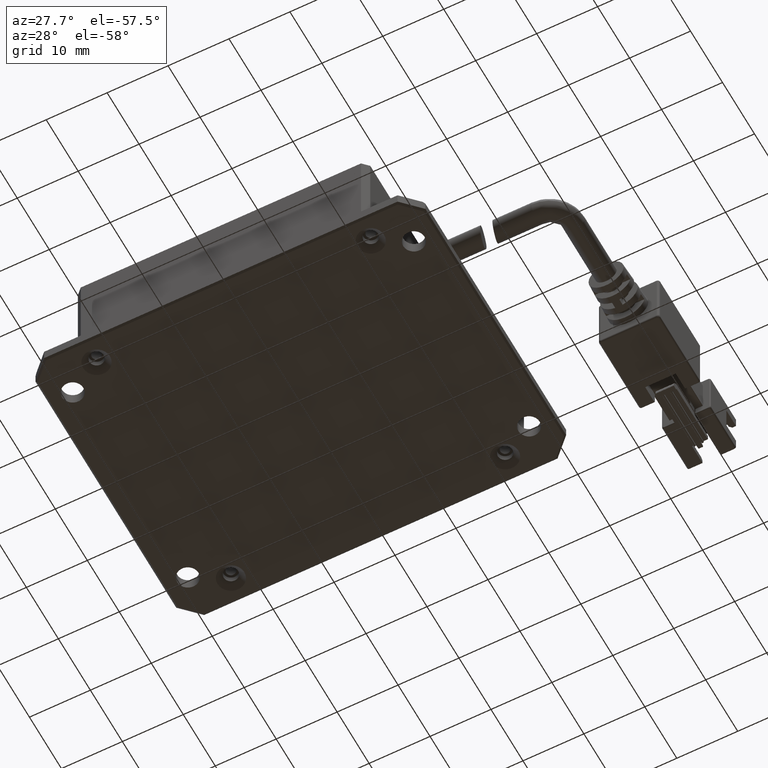
[diagram: clean part render]
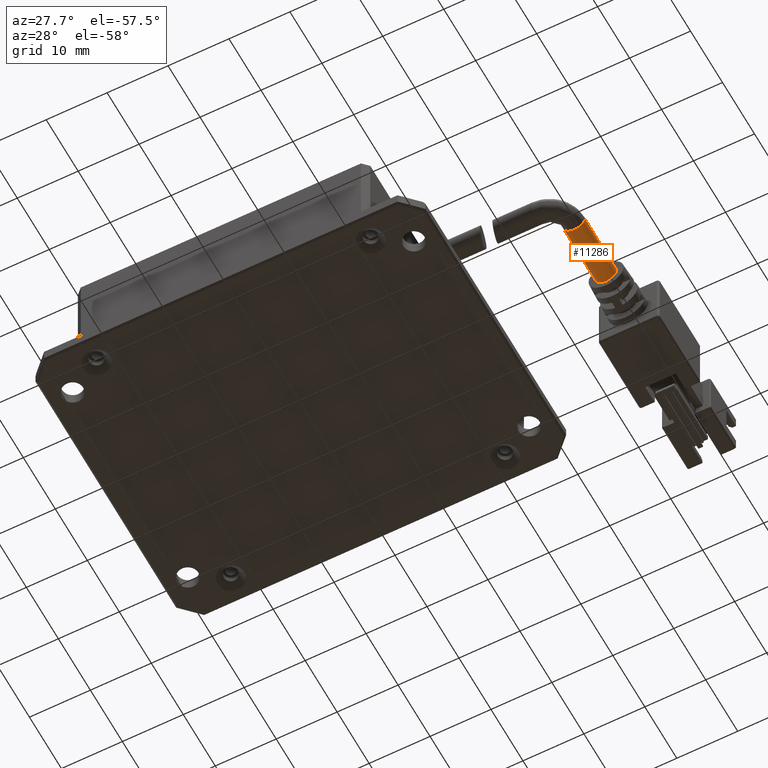
[diagram: same view with one face highlighted and labeled with its STEP entity id]
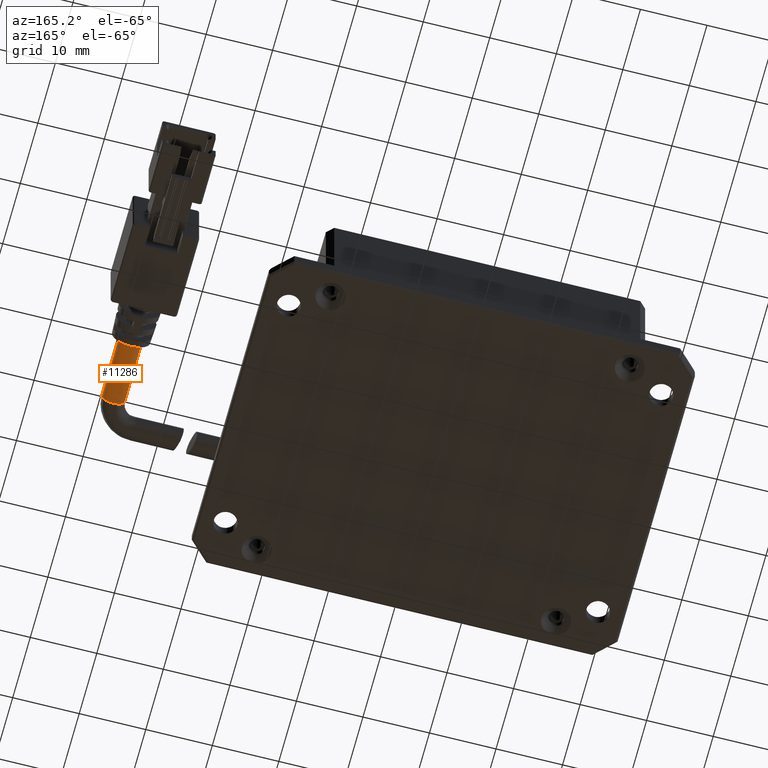
[diagram: same view with one face highlighted and labeled with its STEP entity id]
A machine part, auxiliary view. The second image highlights one B-rep face of the part: STEP entity #11286.
A second angle (auxiliary view) of the same face is appended — the face is thin or edge-on in the first view.
In plain terms, the highlighted cylindrical surface (edge-blend (fillet) strip) has radius 1.75 mm, axis along (-0, 1, -0).
Its self-contained STEP definition (entity closure, byte-faithful):
#380 = CARTESIAN_POINT ( 'NONE',  ( 47.09316533027874400, -3.709049255440967800, 4.999999999983692200 ) ) ;
#1060 = EDGE_CURVE ( 'NONE', #1186, #10900, #17662, .T. ) ;
#1186 = VERTEX_POINT ( 'NONE', #9278 ) ;
#1279 = DIRECTION ( 'NONE',  ( 1.000000000000000000, 0.0000000000000000000, 0.0000000000000000000 ) ) ;
#2511 = LINE ( 'NONE', #10498, #18842 ) ;
#3078 = CARTESIAN_POINT ( 'NONE',  ( 45.34316533027873700, -3.709049255440967800, 4.999999999983692200 ) ) ;
#3481 = CARTESIAN_POINT ( 'NONE',  ( 47.09316533027874400, -0.7090492554409685300, 4.999999999983692200 ) ) ;
#3563 = DIRECTION ( 'NONE',  ( -3.081487911019577400E-033, 1.000000000000000000, -2.672764710092188000E-049 ) ) ;
#4396 = EDGE_LOOP ( 'NONE', ( #4684, #8941, #15535, #16000 ) ) ;
#4540 = AXIS2_PLACEMENT_3D ( 'NONE', #20224, #10797, #1279 ) ;
#4684 = ORIENTED_EDGE ( 'NONE', *, *, #1060, .T. ) ;
#4831 = CARTESIAN_POINT ( 'NONE',  ( 48.84316533027874400, 6.290950744559033600, 4.999999999983692200 ) ) ;
#5043 = DIRECTION ( 'NONE',  ( -3.081487911019577400E-033, 1.000000000000000000, -2.672764710092188000E-049 ) ) ;
#5214 = CARTESIAN_POINT ( 'NONE',  ( 48.84316533027874400, -0.7090492554409685300, 4.999999999983692200 ) ) ;
#5335 = EDGE_CURVE ( 'NONE', #15857, #12095, #7920, .T. ) ;
#5906 = DIRECTION ( 'NONE',  ( 1.000000000000000000, 0.0000000000000000000, 0.0000000000000000000 ) ) ;
#6600 = EDGE_CURVE ( 'NONE', #1186, #15857, #16270, .T. ) ;
#7920 = CIRCLE ( 'NONE', #4540, 1.750000000000001600 ) ;
#8941 = ORIENTED_EDGE ( 'NONE', *, *, #12014, .T. ) ;
#9278 = CARTESIAN_POINT ( 'NONE',  ( 48.84316533027874400, -3.709049255440967800, 4.999999999983692200 ) ) ;
#9853 = DIRECTION ( 'NONE',  ( 1.000000000000000000, 0.0000000000000000000, 0.0000000000000000000 ) ) ;
#10498 = CARTESIAN_POINT ( 'NONE',  ( 45.34316533027873700, -0.7090492554409685300, 4.999999999983692200 ) ) ;
#10797 = DIRECTION ( 'NONE',  ( -3.081487911019577400E-033, 1.000000000000000000, -2.672764710092188000E-049 ) ) ;
#10900 = VERTEX_POINT ( 'NONE', #3078 ) ;
#11286 = ADVANCED_FACE ( 'NONE', ( #17178 ), #11530, .T. ) ;
#11530 = CYLINDRICAL_SURFACE ( 'NONE', #13854, 1.750000000000001600 ) ;
#12014 = EDGE_CURVE ( 'NONE', #10900, #12095, #2511, .T. ) ;
#12095 = VERTEX_POINT ( 'NONE', #18556 ) ;
#12106 = DIRECTION ( 'NONE',  ( -3.081487911019577400E-033, 1.000000000000000000, -2.672764710092188000E-049 ) ) ;
#12960 = AXIS2_PLACEMENT_3D ( 'NONE', #380, #15145, #5906 ) ;
#13854 = AXIS2_PLACEMENT_3D ( 'NONE', #3481, #5043, #9853 ) ;
#15145 = DIRECTION ( 'NONE',  ( -3.081487911019577400E-033, 1.000000000000000000, -2.672764710092188000E-049 ) ) ;
#15535 = ORIENTED_EDGE ( 'NONE', *, *, #5335, .F. ) ;
#15857 = VERTEX_POINT ( 'NONE', #4831 ) ;
#16000 = ORIENTED_EDGE ( 'NONE', *, *, #6600, .F. ) ;
#16270 = LINE ( 'NONE', #5214, #20441 ) ;
#17178 = FACE_OUTER_BOUND ( 'NONE', #4396, .T. ) ;
#17662 = CIRCLE ( 'NONE', #12960, 1.750000000000001600 ) ;
#18556 = CARTESIAN_POINT ( 'NONE',  ( 45.34316533027873700, 6.290950744559033600, 4.999999999983692200 ) ) ;
#18842 = VECTOR ( 'NONE', #12106, 1000.000000000000000 ) ;
#20224 = CARTESIAN_POINT ( 'NONE',  ( 47.09316533027874400, 6.290950744559033600, 4.999999999983692200 ) ) ;
#20441 = VECTOR ( 'NONE', #3563, 1000.000000000000000 ) ;